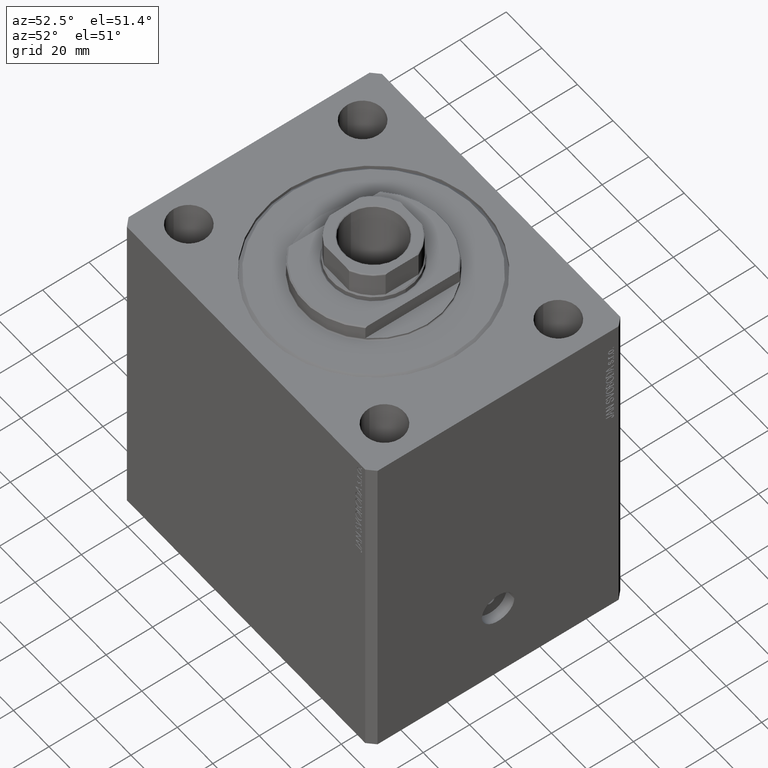
[diagram: clean part render]
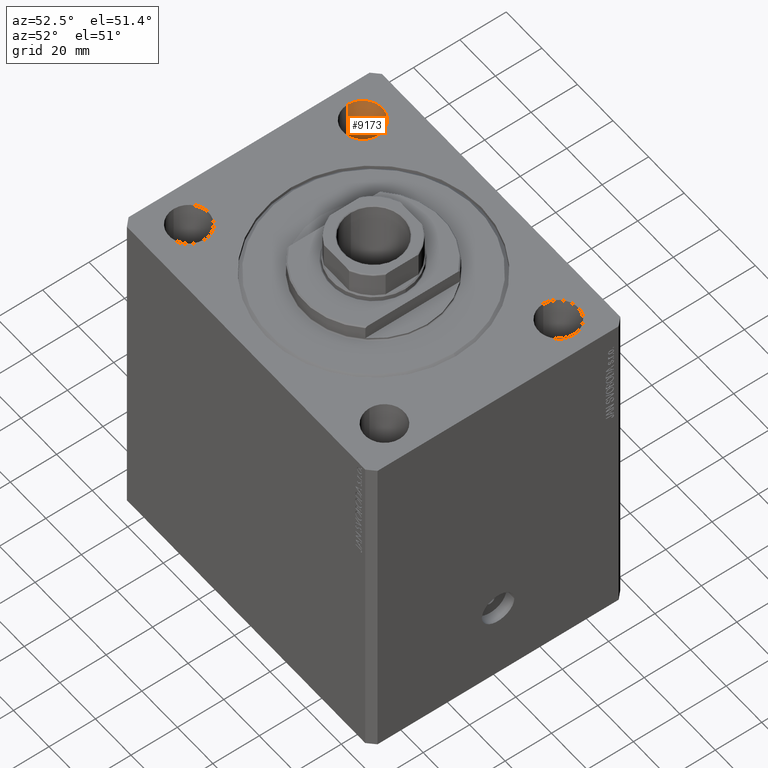
[diagram: same view with one face highlighted and labeled with its STEP entity id]
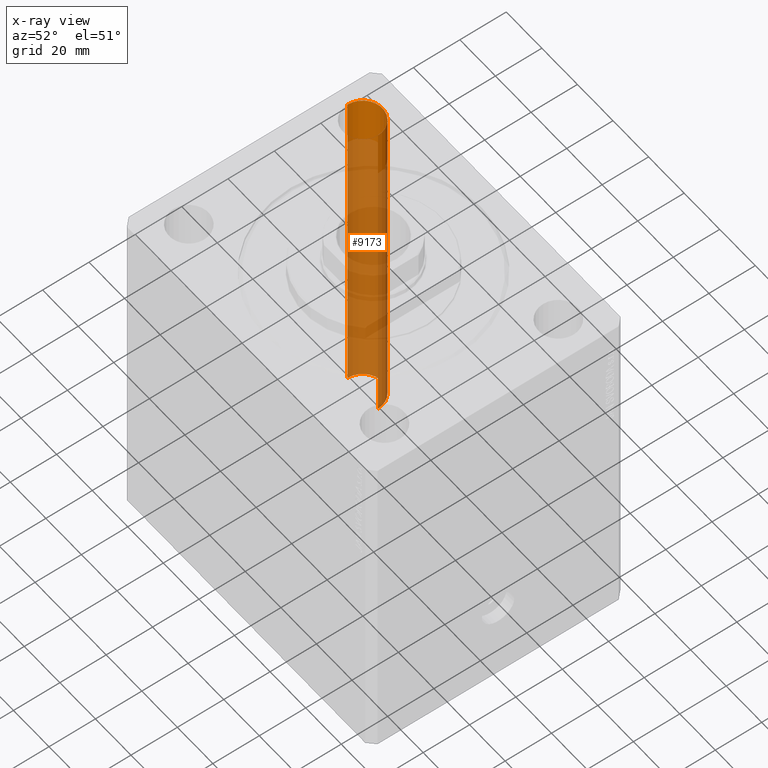
[diagram: x-ray of the same camera — body ghosted, the highlighted face saturated]
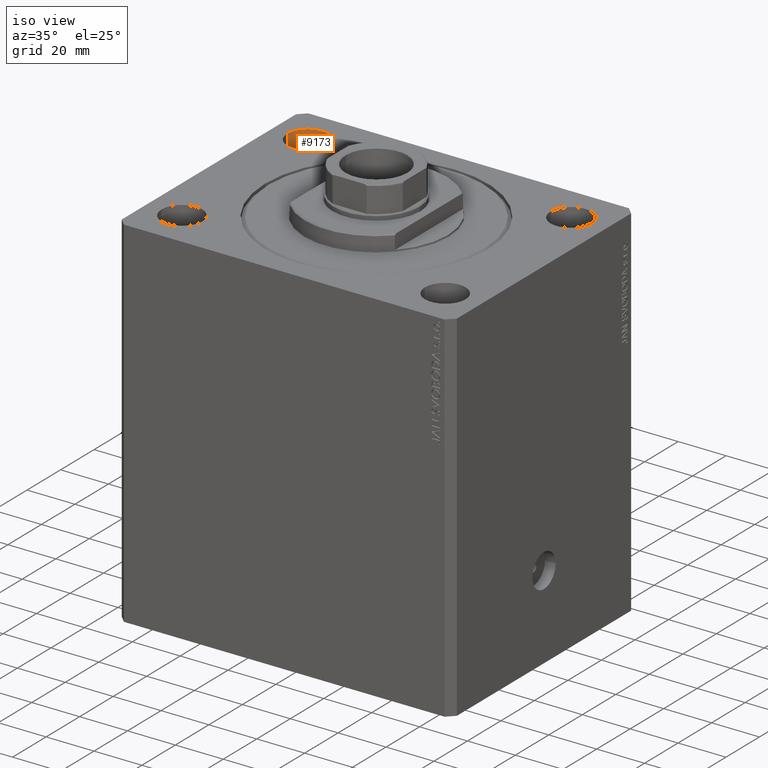
[diagram: same view with one face highlighted and labeled with its STEP entity id]
A machine part, auxiliary view. The second image highlights one B-rep face of the part: STEP entity #9173.
The next image is the same camera in x-ray: the body ghosted, the highlighted face saturated — about 84% of this face is hidden behind the body in this view.
A second angle (iso view) of the same face is appended — the face is thin or edge-on in the first view.
In plain terms, the highlighted cylindrical surface (edge-blend (fillet) strip) has radius 8.5 mm, axis along (0, 0, 1).
Its self-contained STEP definition (entity closure, byte-faithful):
#944 = FACE_OUTER_BOUND ( 'NONE', #3532, .T. ) ;
#1554 = EDGE_CURVE ( 'NONE', #38945, #27141, #1942, .T. ) ;
#1942 = LINE ( 'NONE', #2178, #46409 ) ;
#2178 = CARTESIAN_POINT ( 'NONE',  ( -46.50000000000000000, 37.50000000000000000, -174.0416305603426395 ) ) ;
#2987 = DIRECTION ( 'NONE',  ( -0.000000000000000000, -0.000000000000000000, -1.000000000000000000 ) ) ;
#3532 = EDGE_LOOP ( 'NONE', ( #19497, #28288, #39891, #30113 ) ) ;
#5771 = DIRECTION ( 'NONE',  ( -0.000000000000000000, -0.000000000000000000, 1.000000000000000000 ) ) ;
#6588 = DIRECTION ( 'NONE',  ( 1.000000000000000000, 0.000000000000000000, 0.000000000000000000 ) ) ;
#6611 = CARTESIAN_POINT ( 'NONE',  ( -63.50000000000000000, 37.50000000000000000, 0.000000000000000000 ) ) ;
#8233 = AXIS2_PLACEMENT_3D ( 'NONE', #30447, #26149, #40494 ) ;
#8333 = DIRECTION ( 'NONE',  ( -0.000000000000000000, -0.000000000000000000, 1.000000000000000000 ) ) ;
#9173 = ADVANCED_FACE ( 'NONE', ( #944 ), #22707, .F. ) ;
#12490 = CARTESIAN_POINT ( 'NONE',  ( -46.50000000000000000, 37.50000000000000000, -150.0000000000000000 ) ) ;
#19497 = ORIENTED_EDGE ( 'NONE', *, *, #38844, .F. ) ;
#19929 = AXIS2_PLACEMENT_3D ( 'NONE', #45206, #8333, #40651 ) ;
#20444 = LINE ( 'NONE', #26935, #31145 ) ;
#21262 = CARTESIAN_POINT ( 'NONE',  ( -46.50000000000000000, 37.50000000000000000, 0.000000000000000000 ) ) ;
#22707 = CYLINDRICAL_SURFACE ( 'NONE', #19929, 8.500000000000000000 ) ;
#26149 = DIRECTION ( 'NONE',  ( 0.000000000000000000, 0.000000000000000000, 1.000000000000000000 ) ) ;
#26935 = CARTESIAN_POINT ( 'NONE',  ( -63.50000000000000000, 37.50000000000000000, -174.0416305603426395 ) ) ;
#27141 = VERTEX_POINT ( 'NONE', #21262 ) ;
#28199 = EDGE_CURVE ( 'NONE', #33698, #38945, #43168, .T. ) ;
#28288 = ORIENTED_EDGE ( 'NONE', *, *, #28199, .T. ) ;
#30113 = ORIENTED_EDGE ( 'NONE', *, *, #33305, .T. ) ;
#30151 = AXIS2_PLACEMENT_3D ( 'NONE', #32412, #2987, #6588 ) ;
#30418 = CIRCLE ( 'NONE', #8233, 8.500000000000000000 ) ;
#30447 = CARTESIAN_POINT ( 'NONE',  ( -55.00000000000000000, 37.50000000000000000, 0.000000000000000000 ) ) ;
#31145 = VECTOR ( 'NONE', #38162, 1000.000000000000000 ) ;
#32412 = CARTESIAN_POINT ( 'NONE',  ( -55.00000000000000000, 37.50000000000000000, -150.0000000000000000 ) ) ;
#33305 = EDGE_CURVE ( 'NONE', #27141, #35675, #30418, .T. ) ;
#33698 = VERTEX_POINT ( 'NONE', #40917 ) ;
#35675 = VERTEX_POINT ( 'NONE', #6611 ) ;
#38162 = DIRECTION ( 'NONE',  ( -0.000000000000000000, -0.000000000000000000, 1.000000000000000000 ) ) ;
#38844 = EDGE_CURVE ( 'NONE', #33698, #35675, #20444, .T. ) ;
#38945 = VERTEX_POINT ( 'NONE', #12490 ) ;
#39891 = ORIENTED_EDGE ( 'NONE', *, *, #1554, .T. ) ;
#40494 = DIRECTION ( 'NONE',  ( 1.000000000000000000, 0.000000000000000000, 0.000000000000000000 ) ) ;
#40651 = DIRECTION ( 'NONE',  ( 1.000000000000000000, 0.000000000000000000, 0.000000000000000000 ) ) ;
#40917 = CARTESIAN_POINT ( 'NONE',  ( -63.50000000000000000, 37.50000000000000000, -150.0000000000000000 ) ) ;
#43168 = CIRCLE ( 'NONE', #30151, 8.500000000000000000 ) ;
#45206 = CARTESIAN_POINT ( 'NONE',  ( -55.00000000000000000, 37.50000000000000000, -174.0416305603426395 ) ) ;
#46409 = VECTOR ( 'NONE', #5771, 1000.000000000000000 ) ;